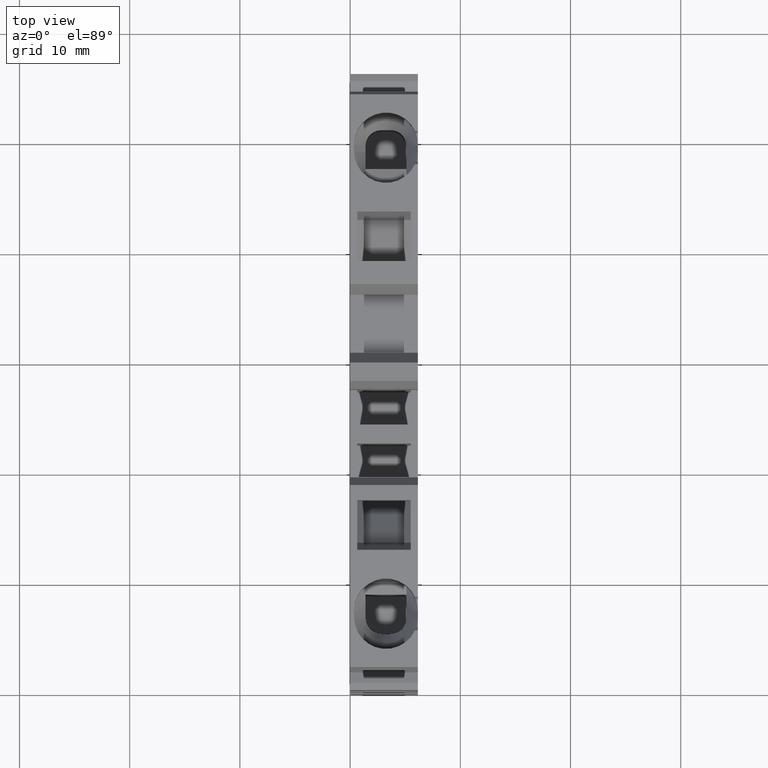
[diagram: clean part render]
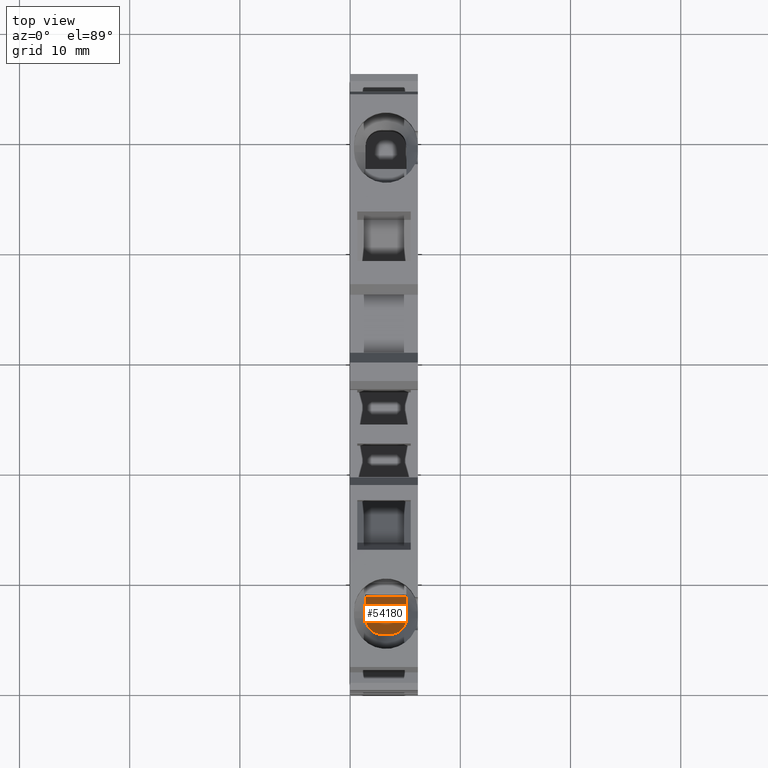
[diagram: same view with one face highlighted and labeled with its STEP entity id]
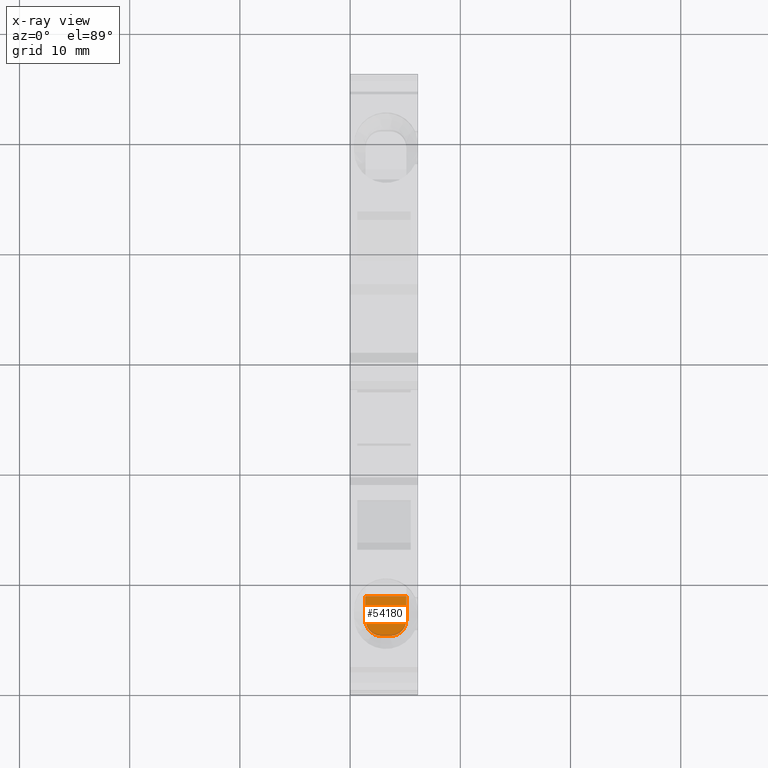
[diagram: x-ray of the same camera — body ghosted, the highlighted face saturated]
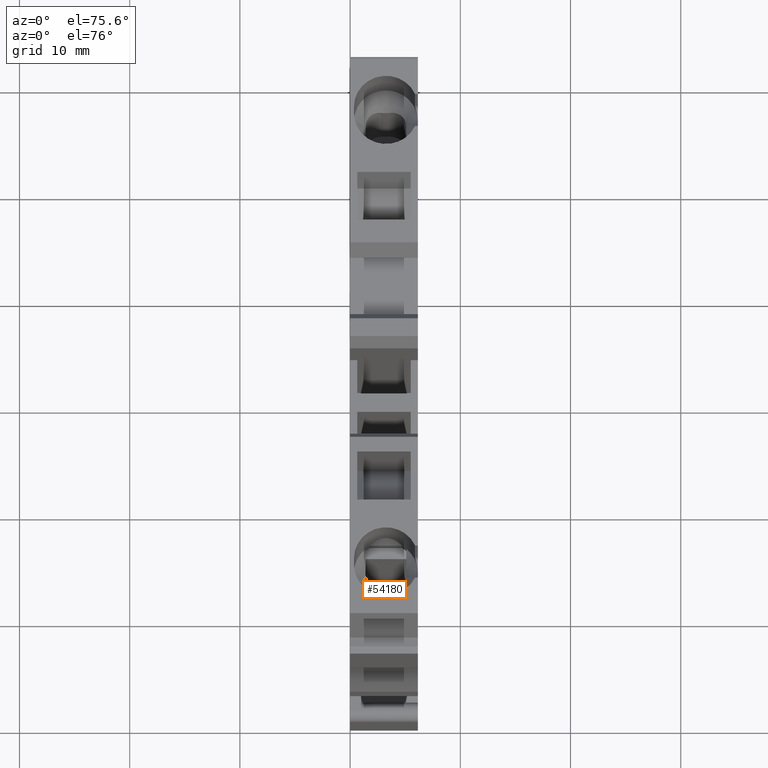
[diagram: same view with one face highlighted and labeled with its STEP entity id]
A machine part, top view. The second image highlights one B-rep face of the part: STEP entity #54180.
The next image is the same camera in x-ray: the body ghosted, the highlighted face saturated — about 5% of this face is hidden behind the body in this view.
A second angle (auxiliary view) of the same face is appended — the face is thin or edge-on in the first view.
In plain terms, the highlighted planar face has unit normal (0, 0, -1).
Its self-contained STEP definition (entity closure, byte-faithful):
#47600=CARTESIAN_POINT('',(-42.3500000000008,3.4499999999995,-2.3));
#47610=VERTEX_POINT('',#47600);
#48660=CARTESIAN_POINT('',(-40.9000000000008,3.4499999999995,
-3.75000000000001));
#48670=VERTEX_POINT('',#48660);
#48700=CARTESIAN_POINT('',(-40.9000000000008,3.4499999999995,
-2.30000000000001));
#48710=DIRECTION('',(0.,-1.,0.));
#48720=DIRECTION('',(-6.12323399573676E-17,0.,-1.));
#48730=AXIS2_PLACEMENT_3D('',#48700,#48710,#48720);
#48740=CIRCLE('',#48730,1.45);
#48750=EDGE_CURVE('',#47610,#48670,#48740,.T.);
#48920=CARTESIAN_POINT('',(-42.3500000000008,3.4499999999995,
-1.4228618283596E-12));
#48930=DIRECTION('',(-1.98247505573876E-32,0.,1.));
#48940=VECTOR('',#48930,1.);
#48950=LINE('',#48920,#48940);
#48960=CARTESIAN_POINT('',(-42.3500000000008,3.4499999999995,
-1.50000000000001));
#48970=VERTEX_POINT('',#48960);
#48980=EDGE_CURVE('',#47610,#48970,#48950,.T.);
#50630=CARTESIAN_POINT('',(-40.9000000000008,3.4499999999995,
-1.50000000000001));
#50640=DIRECTION('',(6.12323399573676E-17,-1.,-6.12323399573676E-17));
#50650=DIRECTION('',(-6.12323399573677E-17,6.12323399573676E-17,-1.));
#50660=AXIS2_PLACEMENT_3D('',#50630,#50640,#50650);
#50670=CIRCLE('',#50660,1.45);
#50680=CARTESIAN_POINT('',(-40.9000000000008,3.4499999999995,
-0.0500000000000074));
#50690=VERTEX_POINT('',#50680);
#50700=EDGE_CURVE('',#50690,#48970,#50670,.T.);
#51990=CARTESIAN_POINT('',(-0.19999969135867,3.4499999999995,
-0.0500000000000074));
#52000=DIRECTION('',(1.,0.,4.82715273076904E-33));
#52010=VECTOR('',#52000,1.);
#52020=LINE('',#51990,#52010);
#52030=CARTESIAN_POINT('',(-38.7499996913587,3.4499999999995,
-0.0500000000000074));
#52040=VERTEX_POINT('',#52030);
#52050=EDGE_CURVE('',#50690,#52040,#52020,.T.);
#53610=CARTESIAN_POINT('',(-38.7499996913587,3.4499999999995,
-3.75000000000001));
#53620=VERTEX_POINT('',#53610);
#53650=CARTESIAN_POINT('',(-0.19999969135867,3.4499999999995,
-3.75000000000001));
#53660=DIRECTION('',(-1.,0.,-8.57655218742367E-33));
#53670=VECTOR('',#53660,1.);
#53680=LINE('',#53650,#53670);
#53690=EDGE_CURVE('',#53620,#48670,#53680,.T.);
#53870=CARTESIAN_POINT('',(-38.7499996913587,3.4499999999995,
-1.4228618283596E-12));
#53880=DIRECTION('',(0.,0.,-1.));
#53890=VECTOR('',#53880,1.);
#53900=LINE('',#53870,#53890);
#53910=EDGE_CURVE('',#52040,#53620,#53900,.T.);
#54050=CARTESIAN_POINT('',(-38.9000000000009,3.4499999999995,
-5.81300240000001));
#54060=DIRECTION('',(-0.,-1.,-0.));
#54070=DIRECTION('',(-1.,0.,0.));
#54080=AXIS2_PLACEMENT_3D('',#54050,#54060,#54070);
#54090=PLANE('',#54080);
#54100=ORIENTED_EDGE('',*,*,#48750,.F.);
#54110=ORIENTED_EDGE('',*,*,#53690,.T.);
#54120=ORIENTED_EDGE('',*,*,#53910,.T.);
#54130=ORIENTED_EDGE('',*,*,#52050,.T.);
#54140=ORIENTED_EDGE('',*,*,#50700,.F.);
#54150=ORIENTED_EDGE('',*,*,#48980,.T.);
#54160=EDGE_LOOP('',(#54150,#54140,#54130,#54120,#54110,#54100));
#54170=FACE_OUTER_BOUND('',#54160,.T.);
#54180=ADVANCED_FACE('',(#54170),#54090,.F.);